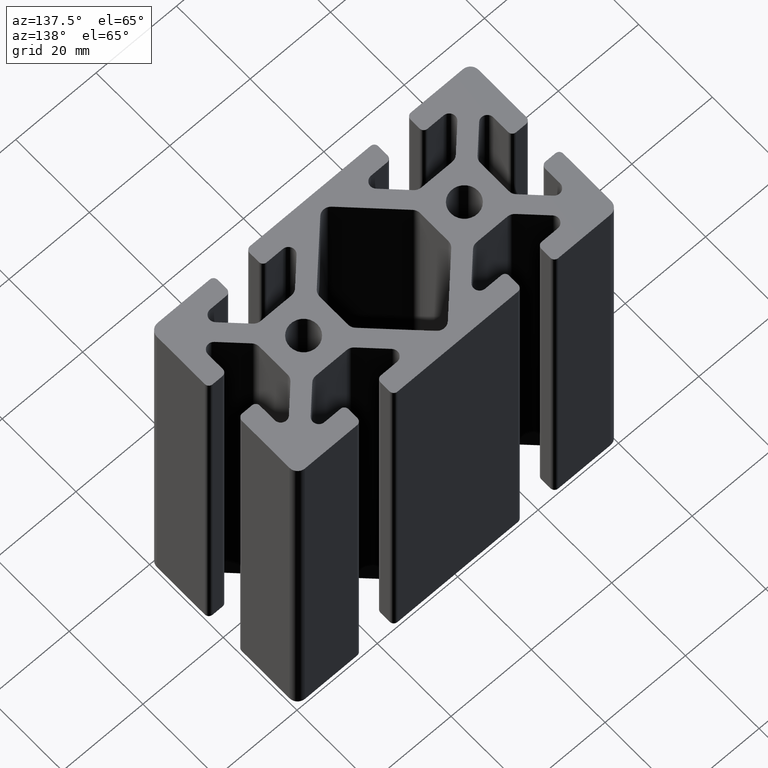
[diagram: clean part render]
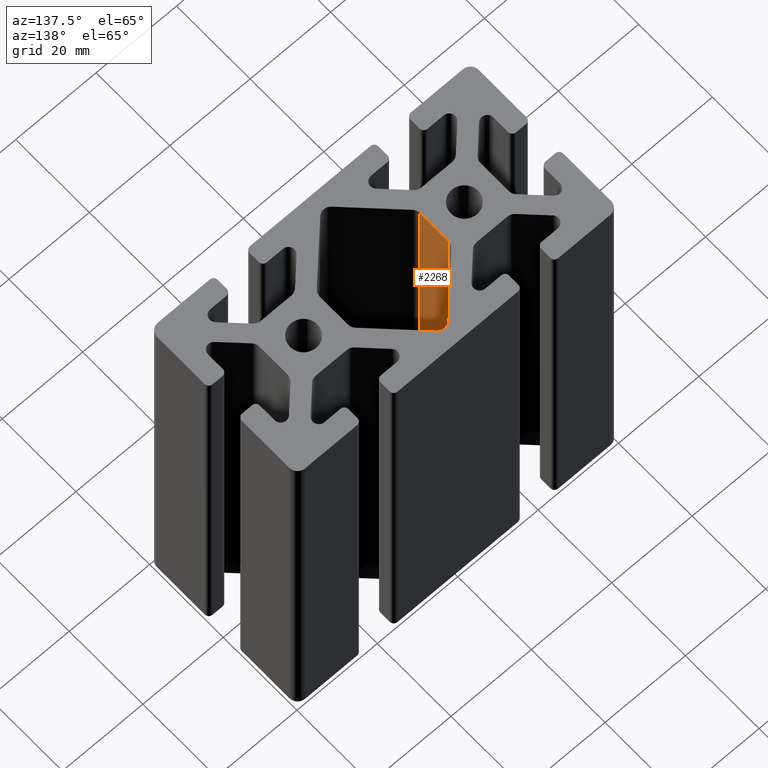
[diagram: same view with one face highlighted and labeled with its STEP entity id]
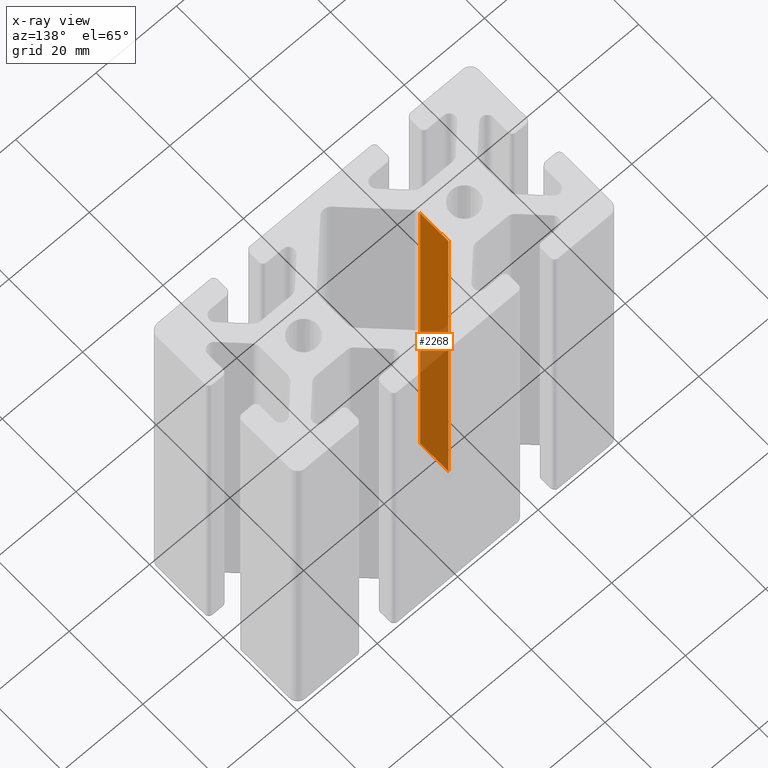
[diagram: x-ray of the same camera — body ghosted, the highlighted face saturated]
A machine part, auxiliary view. The second image highlights one B-rep face of the part: STEP entity #2268.
The next image is the same camera in x-ray: the body ghosted, the highlighted face saturated — about 56% of this face is hidden behind the body in this view.
In plain terms, the highlighted planar face has unit normal (-1, 0, 0).
Its self-contained STEP definition (entity closure, byte-faithful):
#15=LINE('',#3352,#247);
#16=LINE('',#3354,#248);
#17=LINE('',#3356,#249);
#18=LINE('',#3357,#250);
#247=VECTOR('',#2639,7.68629150101523);
#248=VECTOR('',#2640,100.);
#249=VECTOR('',#2641,7.68629150101523);
#250=VECTOR('',#2642,100.);
#479=PLANE('',#2392);
#548=FACE_OUTER_BOUND('',#669,.T.);
#669=EDGE_LOOP('',(#1505,#1506,#1507,#1508));
#917=VERTEX_POINT('',#3350);
#918=VERTEX_POINT('',#3351);
#919=VERTEX_POINT('',#3353);
#920=VERTEX_POINT('',#3355);
#1153=EDGE_CURVE('',#917,#918,#15,.T.);
#1154=EDGE_CURVE('',#919,#917,#16,.T.);
#1155=EDGE_CURVE('',#920,#919,#17,.T.);
#1156=EDGE_CURVE('',#920,#918,#18,.T.);
#1505=ORIENTED_EDGE('',*,*,#1153,.F.);
#1506=ORIENTED_EDGE('',*,*,#1154,.F.);
#1507=ORIENTED_EDGE('',*,*,#1155,.F.);
#1508=ORIENTED_EDGE('',*,*,#1156,.T.);
#2268=ADVANCED_FACE('',(#548),#479,.F.);
#2392=AXIS2_PLACEMENT_3D('',#3349,#2637,#2638);
#2637=DIRECTION('center_axis',(-1.,5.77767847851471E-16,0.));
#2638=DIRECTION('ref_axis',(-5.32907051820075E-16,-1.,0.));
#2639=DIRECTION('',(5.77767847851471E-16,1.,0.));
#2640=DIRECTION('',(0.,0.,1.));
#2641=DIRECTION('',(-5.77767847851471E-16,-1.,0.));
#2642=DIRECTION('',(0.,0.,1.));
#3349=CARTESIAN_POINT('Origin',(-12.5,3.84314575050762,0.));
#3350=CARTESIAN_POINT('',(-12.5,-3.84314575050762,100.));
#3351=CARTESIAN_POINT('',(-12.5,3.84314575050762,100.));
#3352=CARTESIAN_POINT('',(-12.5,1.92157287525382,100.));
#3353=CARTESIAN_POINT('',(-12.5,-3.84314575050762,0.));
#3354=CARTESIAN_POINT('',(-12.5,-3.84314575050762,0.));
#3355=CARTESIAN_POINT('',(-12.5,3.84314575050762,0.));
#3356=CARTESIAN_POINT('',(-12.5,1.92157287525382,0.));
#3357=CARTESIAN_POINT('',(-12.5,3.84314575050762,0.));